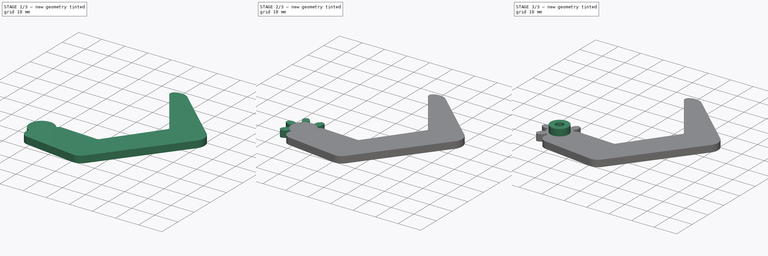
[diagram: build sequence overview — one tinted view per stage of 3, left to right]
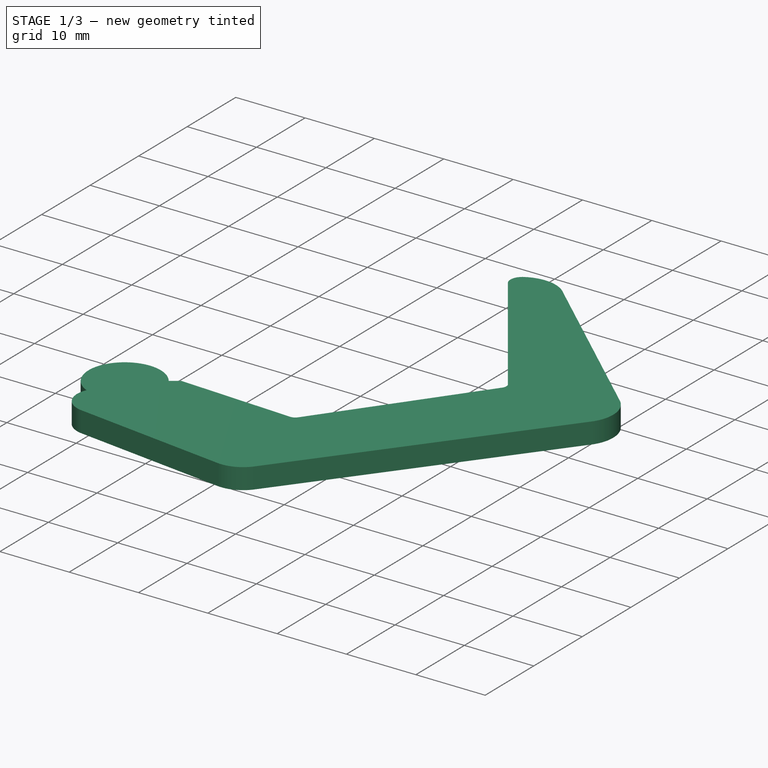
[diagram: stage 1 of 3 — iso view after this stage's code; geometry added in this stage tinted green]
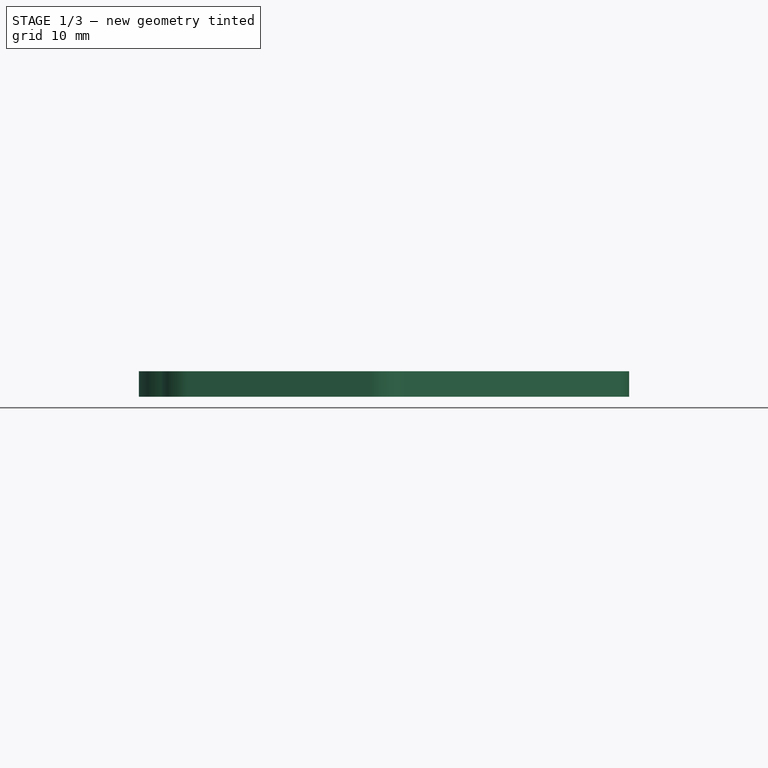
[diagram: stage 1 of 3 — front view after this stage's code; geometry added in this stage tinted green]
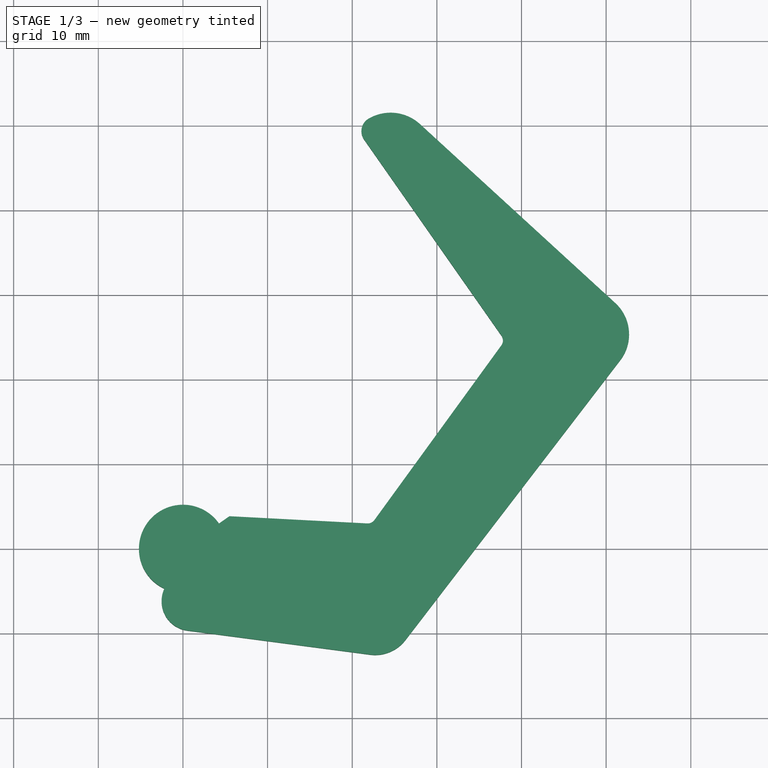
[diagram: stage 1 of 3 — top view after this stage's code; geometry added in this stage tinted green]
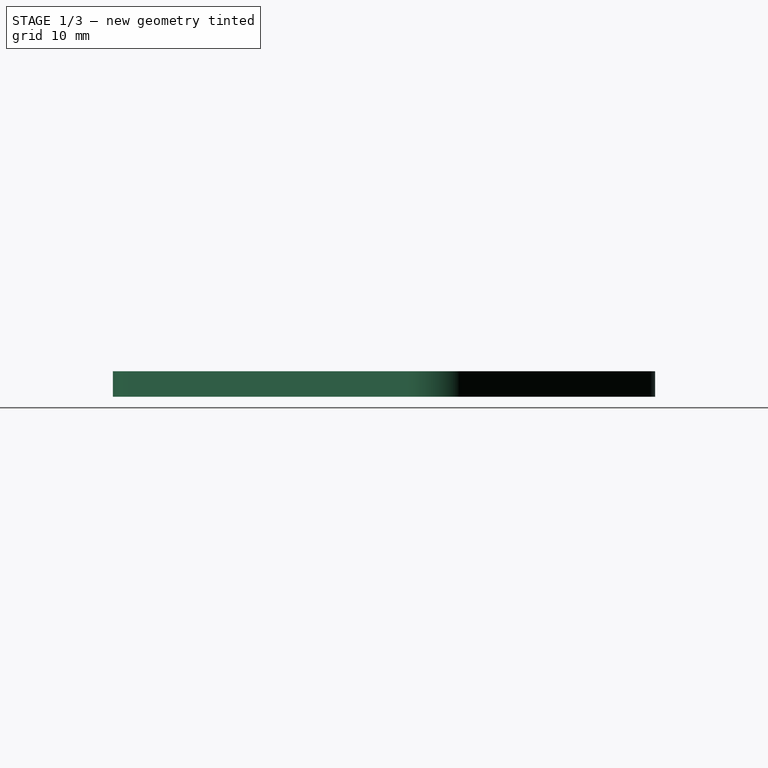
[diagram: stage 1 of 3 — right view after this stage's code; geometry added in this stage tinted green]
FCSTD DOCUMENT  (FreeCAD 0.14R3702 (Git))
Label: claw-pincer-free
License: CC-BY 3.0
LicenseURL: http://creativecommons.org/licenses/by/3.0/
objects: Sketcher::SketchObject×3, PartDesign::Pad×2, Part::Part2DObjectPython×1, Part::Extrusion×1, Part::Mirroring×1, Part::MultiFuse×1, PartDesign::Pocket×1
note: 13 computed .brp shape members not serialized (recipe doc carries the construction recipe); baked Part::Feature solids carry a one-line shape summary decoded from their .brp

FEATURE [Sketcher::SketchObject] Sketch  label="claw-body-sketch"
  sketch-geometry (19):
    g0: ArcOfCircle CenterX=0 CenterY=0 CenterZ=0 NormalX=0 NormalY=0 NormalZ=1 Radius=5.2 StartAngle=5.14872 EndAngle=8.81391
    g1: LineSegment StartX=-5.48832 StartY=3.84296 StartZ=0 EndX=-4.25959 EndY=2.9826 EndZ=0
    g2: LineSegment [constr] StartX=-4.25959 StartY=2.9826 StartZ=0 EndX=0 EndY=0 EndZ=0
    g3: LineSegment StartX=-5.48832 StartY=3.84296 StartZ=0 EndX=-21.766 EndY=2.98989 EndZ=0
    g4: LineSegment StartX=-22.6273 StartY=3.40073 StartZ=0 EndX=-37.6159 EndY=24.0307 EndZ=0
    g5: LineSegment StartX=-37.626 StartY=25.192 StartZ=0 EndX=-21.3938 EndY=48.374 EndZ=0
    g6: LineSegment StartX=-28.0083 StartY=50.1736 StartZ=0 EndX=-51.0851 EndY=29.0276 EndZ=0
    g7: LineSegment StartX=-51.6739 StartY=22.2974 StartZ=0 EndX=-26.2886 EndY=-10.7854 EndZ=0
    g8: LineSegment StartX=-22.1311 StartY=-12.5075 StartZ=0 EndX=-0.517621 EndY=-9.66202 EndZ=0
    g9: LineSegment [constr] StartX=0 StartY=0 StartZ=0 EndX=2.19761 EndY=-4.7128 EndZ=0
    g10: ArcOfCircle CenterX=-0.974462 CenterY=-6.19196 CenterZ=0 NormalX=0 NormalY=0 NormalZ=1 Radius=3.5 StartAngle=4.84329 EndAngle=6.71952
    g11: LineSegment [constr] StartX=-20.4883 StartY=3.84296 StartZ=0 EndX=-5.48832 EndY=3.84296 EndZ=0
    g12: LineSegment [constr] StartX=-20.5176 StartY=-9.66202 StartZ=0 EndX=-0.517621 EndY=-9.66202 EndZ=0
    g13: ArcOfCircle CenterX=-21.8183 CenterY=3.98852 CenterZ=0 NormalX=0 NormalY=0 NormalZ=1 Radius=1 StartAngle=3.76991 EndAngle=4.76475
    g14: ArcOfCircle CenterX=-22.7185 CenterY=-8.04599 CenterZ=0 NormalX=0 NormalY=0 NormalZ=1 Radius=4.5 StartAngle=3.79609 EndAngle=4.84329
    g15: ArcOfCircle CenterX=-36.8068 CenterY=24.6184 CenterZ=0 NormalX=0 NormalY=0 NormalZ=1 Radius=1 StartAngle=2.53073 EndAngle=3.76991
    g16: ArcOfCircle CenterX=-47.7072 CenterY=25.3412 CenterZ=0 NormalX=0 NormalY=0 NormalZ=1 Radius=5 StartAngle=2.31256 EndAngle=3.79609
    g17: ArcOfCircle CenterX=-22.7863 CenterY=49.3491 CenterZ=0 NormalX=0 NormalY=0 NormalZ=1 Radius=1.7 StartAngle=5.67232 EndAngle=7.32203
    g18: ArcOfCircle CenterX=-24.5332 CenterY=46.3811 CenterZ=0 NormalX=0 NormalY=0 NormalZ=1 Radius=5.1439 StartAngle=1.03884 EndAngle=2.31256
  constraints (52):
    c: Radius(g0) = 5.2
    c: Coincident(g0,g-1)
    c: Coincident(g2,g-1)
    c: Coincident(g2,g0)
    c: Angle(g-1,g2) = 2.53073
    c: Parallel(g1,g2)
    c: Coincident(g1,g0)
    c: Coincident(g3,g1)
    c: Distance(g1) = 1.5
    c: Coincident(g9,g-1)
    c: Coincident(g9,g0)
    c: Angle(g9,g-1) = 1.13446
    c: Tangent(g8,g10)
    c: Coincident(g10,g0)
    c: Radius(g10) = 3.5
    c: Coincident(g11,g1)
    c: Horizontal(g11)
    c: DistanceX(g11) = 15
    c: Angle(g11,g3) = 0.0523599
    c: Horizontal(g12)
    c: Coincident(g12,g8)
    c: DistanceX(g12) = 20
    c: Angle(g12,g8) = 0.1309
    c: Angle(g3,g4) = 2.14675
    c: Tangent(g3,g13)
    c: Tangent(g4,g13)
    c: Radius(g13) = 1
    c: Distance(g3) = 16.3
    c: Tangent(g10,g9)
    c: Tangent(g7,g14)
    c: Tangent(g8,g14)
    c: Radius(g14) = 4.5
    c: Angle(g8,g7) = 2.0944
    c: Distance(g8) = 21.8
    c: Tangent(g4,g15)
    c: Tangent(g5,g15)
    c: Radius(g15) = 1
    c: Angle(g4,g5) = 1.90241
    c: Distance(g4) = 25.5
    c: Tangent(g6,g16)
    c: Tangent(g7,g16)
    c: Radius(g16) = 5
    c: Distance(g7) = 41.7
    c: Tangent(g5,g17)
    c: Radius(g17) = 1.7
    c: Distance(g5) = 28.3
    c: Angle(g7,g6) = 1.65806
    c: Coincident(g18,g6)
    c: Coincident(g18,g17)
    c: Tangent(g18,g6)
    c: Distance(g6) = 31.3
    c: Tangent(g18,g17)
FEATURE [PartDesign::Pad] Pad  label="claw-body"
  Length = 3
  Length2 = 100
  Sketch = -> Sketch
  Type = 0
FEATURE [Part::Mirroring] Part__Mirroring  label="claw-body (Mirror #1)"
  Base = (0,0,0)
  Normal = (1,0,0)
  Source = -> Pad
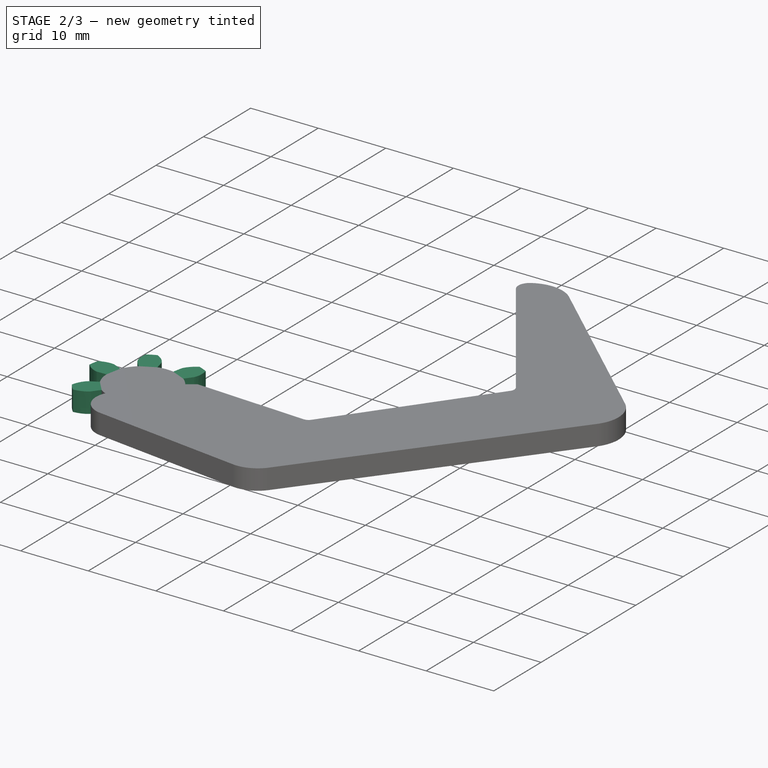
[diagram: stage 2 of 3 — iso view after this stage's code; geometry added in this stage tinted green]
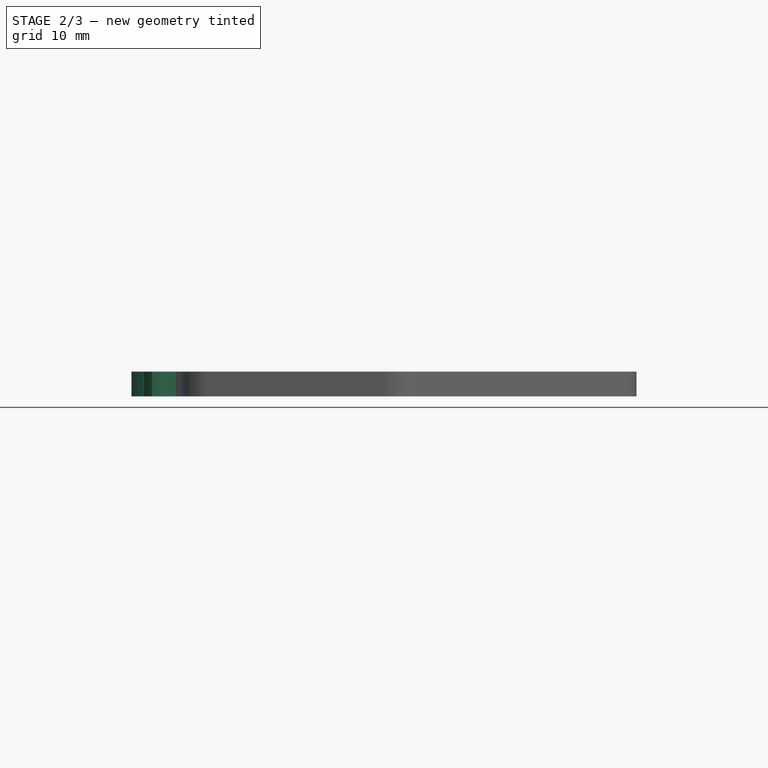
[diagram: stage 2 of 3 — front view after this stage's code; geometry added in this stage tinted green]
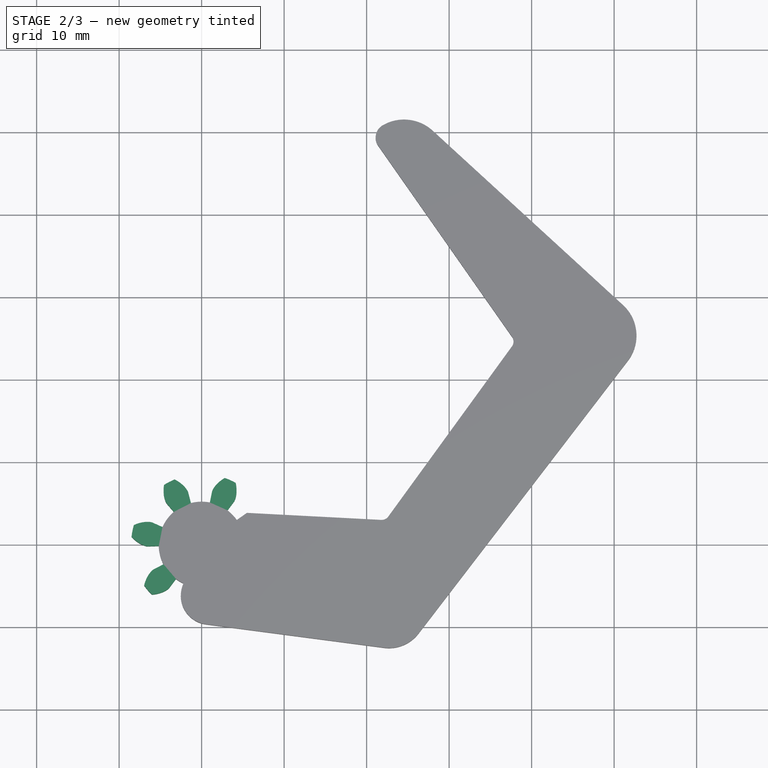
[diagram: stage 2 of 3 — top view after this stage's code; geometry added in this stage tinted green]
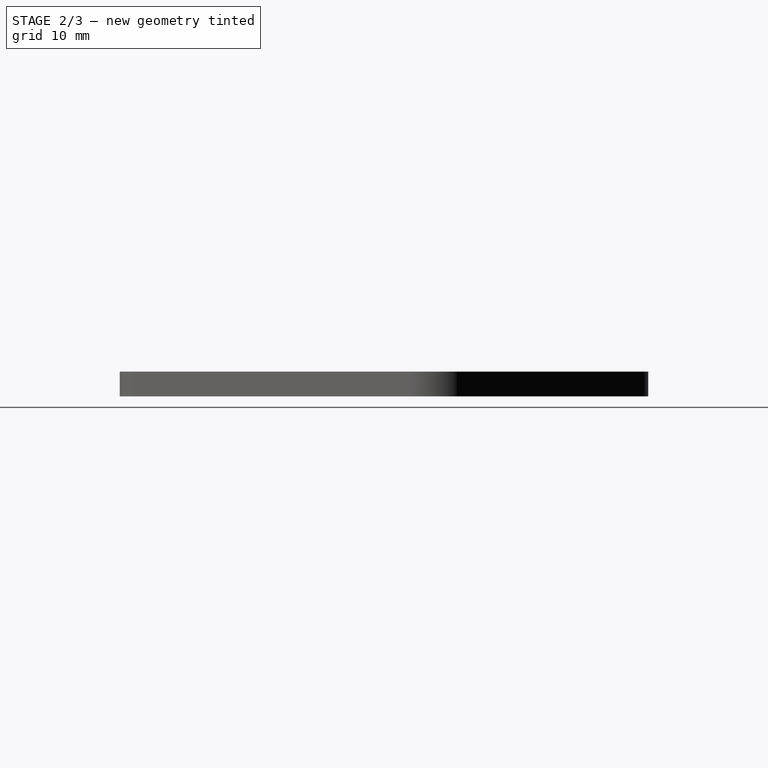
[diagram: stage 2 of 3 — right view after this stage's code; geometry added in this stage tinted green]
FEATURE [Part::Part2DObjectPython] InvoluteGear  label="InvoluteGear-sketch"  # Draft 2D object (typed FeaturePython)
  Modules = 1.9
  NumberOfCurves = 1
  NumberOfTeeth = 7
  Placement = pos=(0,0,0) rot=(0,0,-1;0.261799rad)
  PressureAngle = 10
FEATURE [Part::Extrusion] Extrude  label="involute-gear"
  Base = -> InvoluteGear
  Dir = (0,0,3)
  Placement = pos=(0,0,0) rot=(0,0,1;0.515464rad)
  Solid = true
FEATURE [Part::MultiFuse] Fusion001  label="claw-base"
  Shapes = -> [Extrude,Part__Mirroring]
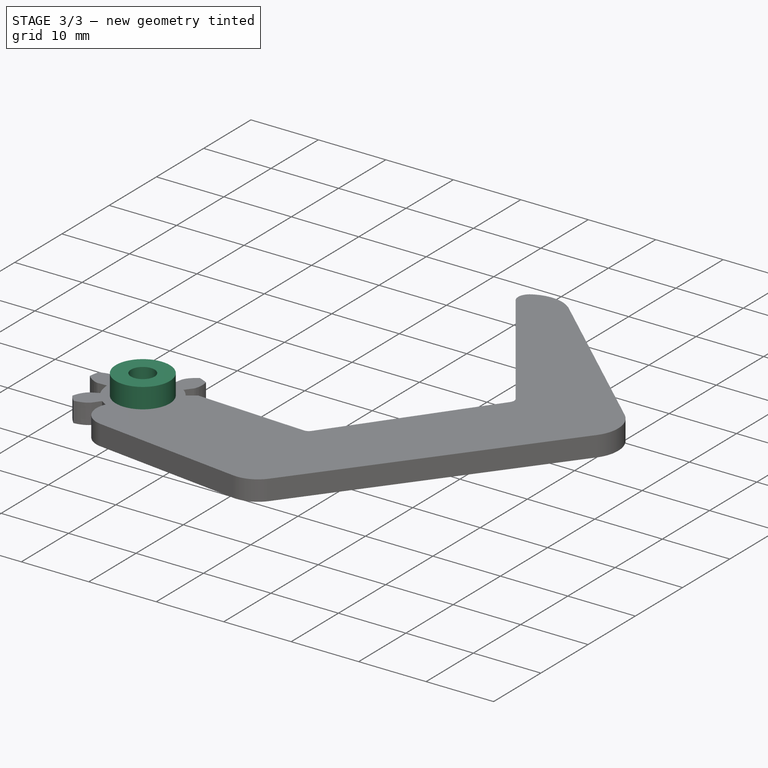
[diagram: stage 3 of 3 — iso view after this stage's code; geometry added in this stage tinted green]
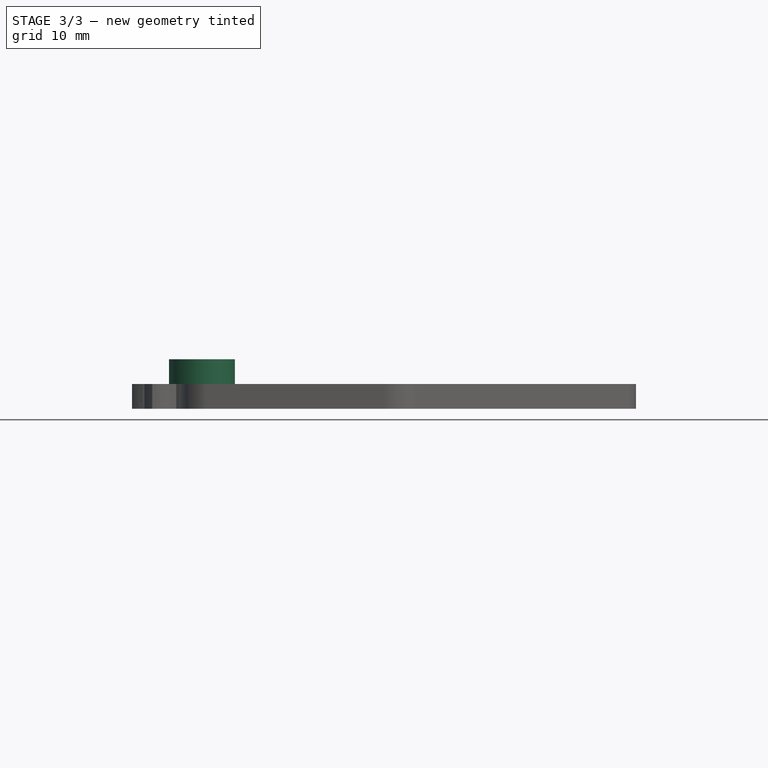
[diagram: stage 3 of 3 — front view after this stage's code; geometry added in this stage tinted green]
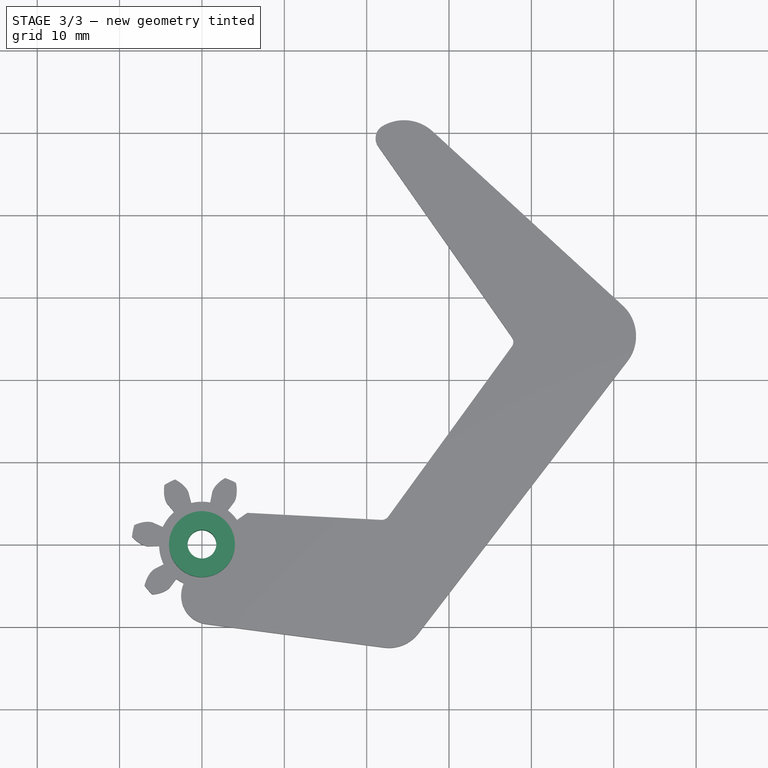
[diagram: stage 3 of 3 — top view after this stage's code; geometry added in this stage tinted green]
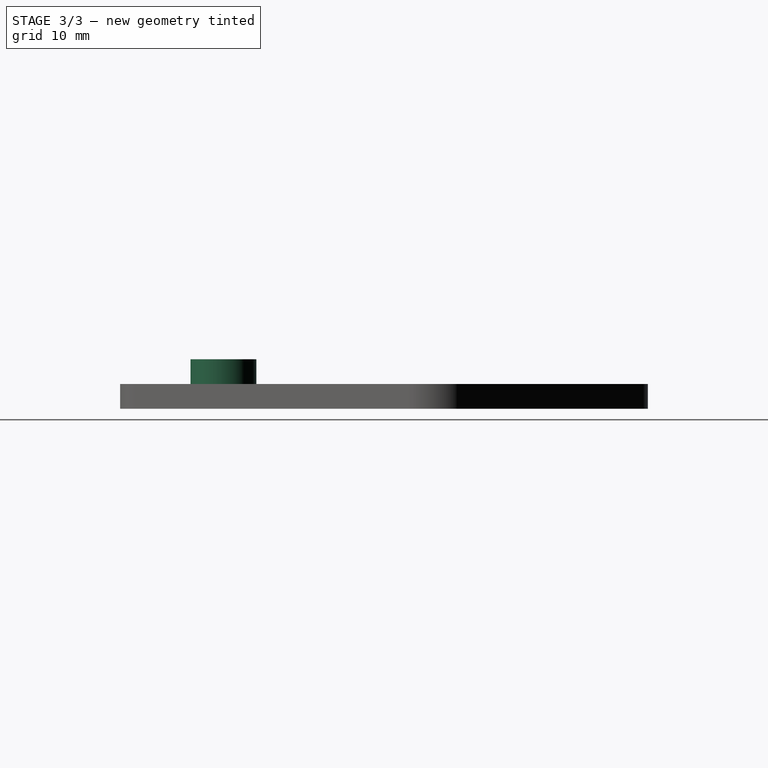
[diagram: stage 3 of 3 — right view after this stage's code; geometry added in this stage tinted green]
FEATURE [Sketcher::SketchObject] Sketch001  label="top-pad-1-sketch"
  Placement = pos=(0,0,3) rot=(0,0,1;0rad)
  Support = -> Fusion001 [Face41]
  sketch-geometry (1):
    g0: Circle CenterX=0 CenterY=0 CenterZ=0 NormalX=0 NormalY=0 NormalZ=1 Radius=4
  constraints (2):
    c: Coincident(g0,g-1)
    c: Radius(g0) = 4
FEATURE [PartDesign::Pad] Pad001  label="top-pad-1"
  Length = 3
  Length2 = 100
  Sketch = -> Sketch001
  Type = 0
FEATURE [Sketcher::SketchObject] Sketch002  label="drill-sketch"
  Placement = pos=(0,0,6) rot=(0,0,1;0rad)
  Support = -> Pad001 [Face1]
  sketch-geometry (1):
    g0: Circle CenterX=0 CenterY=0 CenterZ=0 NormalX=0 NormalY=0 NormalZ=1 Radius=1.75
  constraints (2):
    c: Coincident(g0,g-1)
    c: Radius(g0) = 1.75
FEATURE [PartDesign::Pocket] Pocket001  label="drill"
  Length = 5
  Sketch = -> Sketch002
  Type = 1
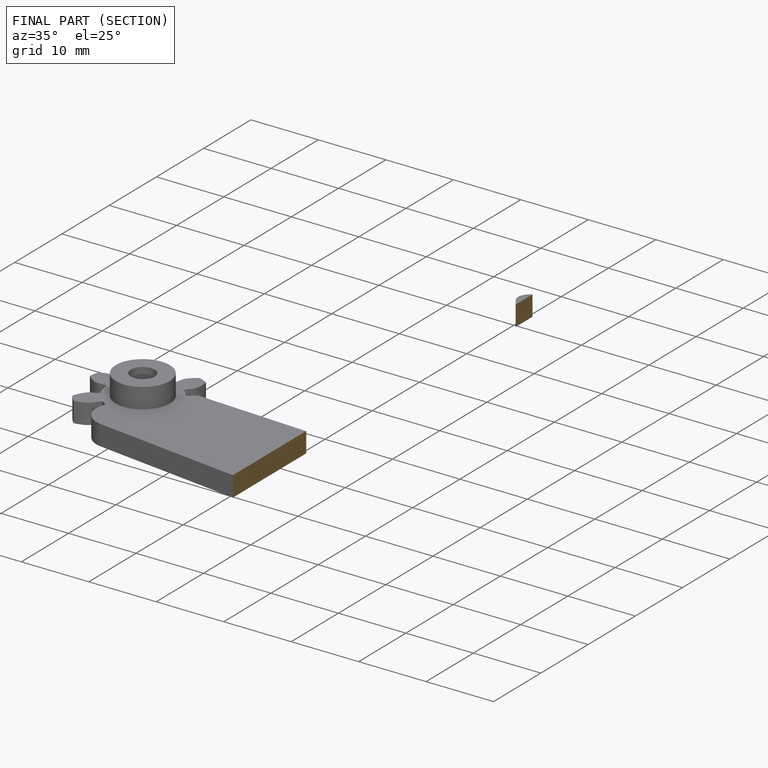
[diagram: finished part — half-section view (interior)]
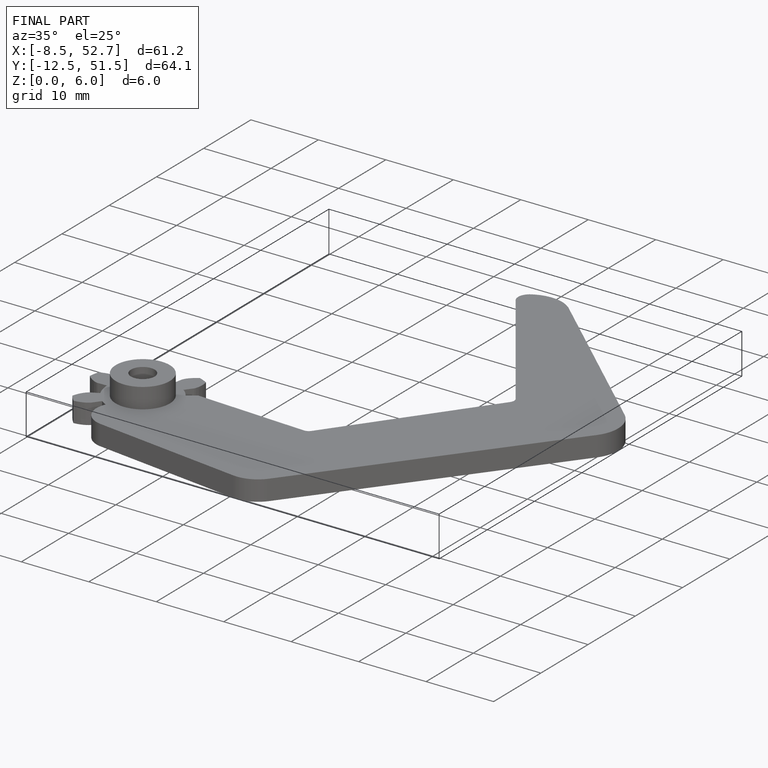
[diagram: finished part — iso view with bounding-box wireframe]
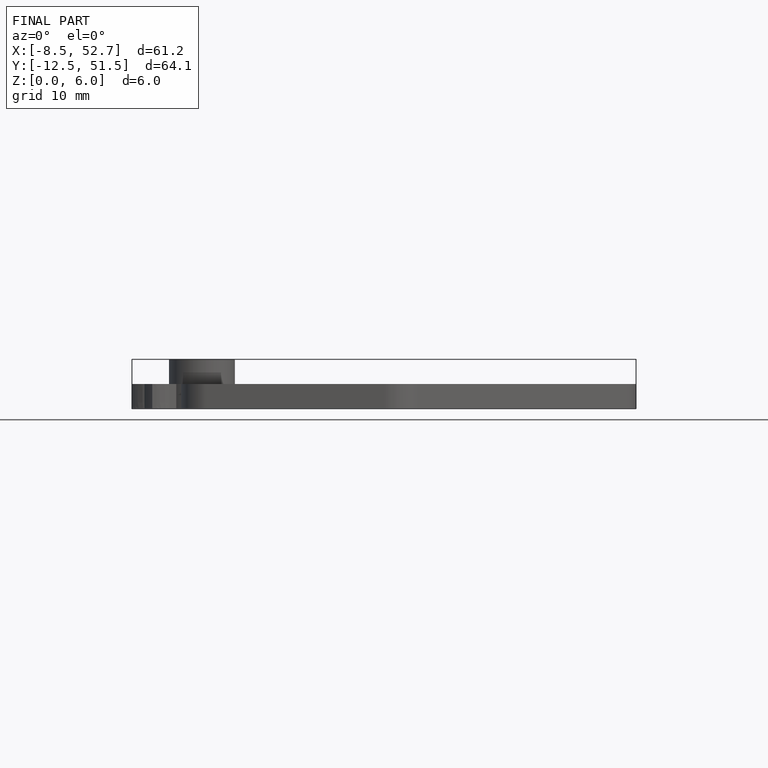
[diagram: finished part — front view with bounding-box wireframe]
